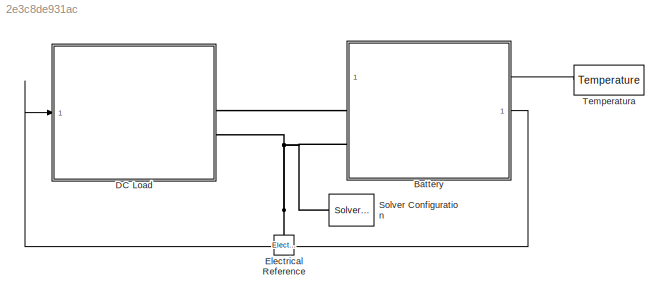
MODEL slx_2e3c8de931ac
KIND model
CONFIG PostLoadFcn = load('input_modelo_bateria.mat')
BLOCK [SubSystem] Battery
  PortSchema = {"entries":[{"content":{"sides":[{"content":{"connectorIds":["LConn1","LConn2"]},"type":"ConnectorPlacement.EquallySpacedRectSide","uuid":"a87e55b6-8336-4e26-8f41-032772011576"},{"content":{"connectorIds":["In1","Out1"],"side":"RIGHT"},"type":"ConnectorPlacement.EquallySpacedRectSide","uuid":"bc789b5a-3568-4714-b987-1664b39aeefc"},{"content":{"connectorIds":[],"side":"TOP"},"type":"ConnectorPlacem...<+258ch>
  Ports = [1, 1, 0, 0, 0, 2]
  ReferencedSubsystem = Battery
  RequestExecContextInheritance = off
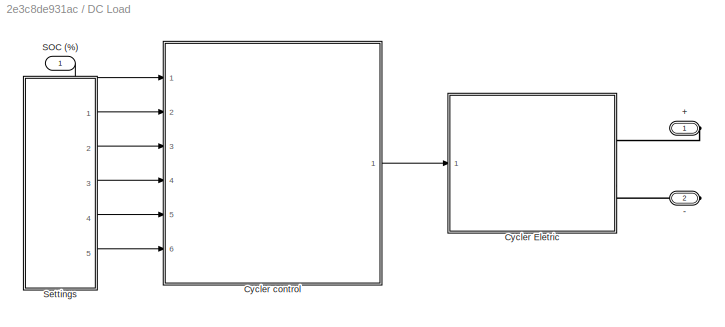
BLOCK [SubSystem] DC Load
  Ports = [1, 0, 0, 0, 0, 0, 2]
  RequestExecContextInheritance = off
BLOCK [PMIOPort] DC Load/+
  Side = Right
BLOCK [PMIOPort] DC Load/-
  Port = 2
  Side = Right
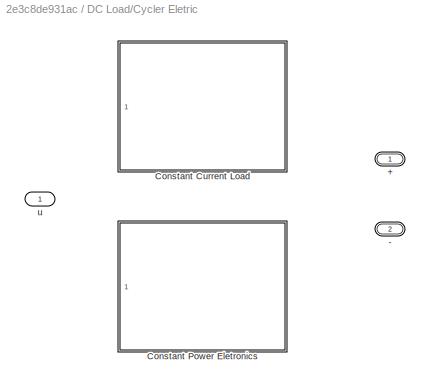
BLOCK [SubSystem] DC Load/Cycler Eletric
  Ports = [1, 0, 0, 0, 0, 0, 2]
  RequestExecContextInheritance = off
  Variant = on
  VariantControl = Choice
BLOCK [PMIOPort] DC Load/Cycler Eletric/+
  Side = Right
BLOCK [PMIOPort] DC Load/Cycler Eletric/-
  Port = 2
  Side = Right
BLOCK [SubSystem] DC Load/Cycler Eletric/Constant Current Load
  Ports = [1, 0, 0, 0, 0, 0, 2]
  ReferencedSubsystem = constant_current_load
  RequestExecContextInheritance = off
  VariantControl = CYCLING_MODE == 0;
BLOCK [SubSystem] DC Load/Cycler Eletric/Constant Power Eletronics
  Ports = [1, 0, 0, 0, 0, 0, 2]
  ReferencedSubsystem = constant_power_eletronics
  RequestExecContextInheritance = off
  VariantControl = CYCLING_MODE == 1;
BLOCK [Inport] DC Load/Cycler Eletric/u 
BLOCK [SubSystem] DC Load/Cycler control
  Ports = [6, 1]
  ReferencedSubsystem = cycling_control
  RequestExecContextInheritance = off
BLOCK [Inport] DC Load/SOC (%)
  NameLocation = top
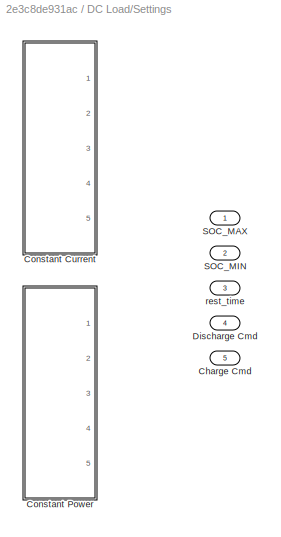
BLOCK [SubSystem] DC Load/Settings
  Ports = [0, 5]
  RequestExecContextInheritance = off
  Variant = on
  VariantControl = Choice
BLOCK [Outport] DC Load/Settings/Charge Cmd
  NameLocation = right
  Port = 5
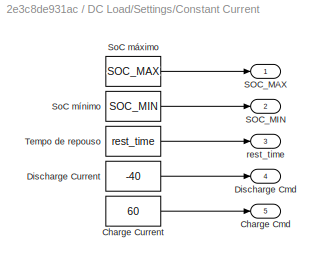
BLOCK [SubSystem] DC Load/Settings/Constant Current
  Ports = [0, 5]
  RequestExecContextInheritance = off
  VariantControl = CYCLING_MODE == 0;
BLOCK [Outport] DC Load/Settings/Constant Current/Charge Cmd
  Port = 5
BLOCK [Constant] DC Load/Settings/Constant Current/Charge Current
  NameLocation = left
  Value = 60
BLOCK [Outport] DC Load/Settings/Constant Current/Discharge Cmd
  Port = 4
BLOCK [Constant] DC Load/Settings/Constant Current/Discharge Current
  NameLocation = left
  Value = -40
BLOCK [Outport] DC Load/Settings/Constant Current/SOC_MAX
BLOCK [Outport] DC Load/Settings/Constant Current/SOC_MIN
  Port = 2
BLOCK [Constant] DC Load/Settings/Constant Current/SoC máximo
  NameLocation = left
  Value = SOC_MAX
BLOCK [Constant] DC Load/Settings/Constant Current/SoC mínimo
  NameLocation = left
  Value = SOC_MIN
BLOCK [Constant] DC Load/Settings/Constant Current/Tempo de repouso
  NameLocation = left
  Value = rest_time
BLOCK [Outport] DC Load/Settings/Constant Current/rest_time
  Port = 3
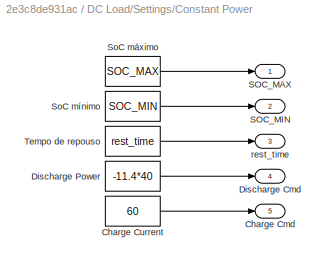
BLOCK [SubSystem] DC Load/Settings/Constant Power
  Ports = [0, 5]
  RequestExecContextInheritance = off
  VariantControl = CYCLING_MODE == 1;
BLOCK [Outport] DC Load/Settings/Constant Power/Charge Cmd
  NameLocation = right
  Port = 5
BLOCK [Constant] DC Load/Settings/Constant Power/Charge Current
  NameLocation = left
  Value = 60
BLOCK [Outport] DC Load/Settings/Constant Power/Discharge Cmd
  NameLocation = right
  Port = 4
BLOCK [Constant] DC Load/Settings/Constant Power/Discharge Power
  NameLocation = left
  Value = -11.4*40
BLOCK [Outport] DC Load/Settings/Constant Power/SOC_MAX
  NameLocation = right
BLOCK [Outport] DC Load/Settings/Constant Power/SOC_MIN
  NameLocation = right
  Port = 2
BLOCK [Constant] DC Load/Settings/Constant Power/SoC máximo
  NameLocation = left
  Value = SOC_MAX
BLOCK [Constant] DC Load/Settings/Constant Power/SoC mínimo
  NameLocation = left
  Value = SOC_MIN
BLOCK [Constant] DC Load/Settings/Constant Power/Tempo de repouso
  NameLocation = left
  Value = rest_time
BLOCK [Outport] DC Load/Settings/Constant Power/rest_time
  NameLocation = right
  Port = 3
BLOCK [Outport] DC Load/Settings/Discharge Cmd
  NameLocation = right
  Port = 4
BLOCK [Outport] DC Load/Settings/SOC_MAX
  NameLocation = right
BLOCK [Outport] DC Load/Settings/SOC_MIN
  NameLocation = right
  Port = 2
BLOCK [Outport] DC Load/Settings/rest_time
  NameLocation = right
  Port = 3
BLOCK [Reference] Electrical Reference  REF=fl_lib/Electrical/Electrical Elements/Electrical Reference
  NameLocation = right
  Ports = [0, 0, 0, 0, 0, 1]
  SourceBlock = fl_lib/Electrical/Electrical Elements/Electrical Reference
  SourceProductBaseCode = PW,SS,VE
  SourceType = Electrical Reference
BLOCK [Reference] Solver Configuration  REF=nesl_utility/Solver
Configuration
  Ports = [0, 0, 0, 0, 0, 0, 1]
  SourceBlock = nesl_utility/Solver\nConfiguration
  SourceProductBaseCode = SS,PW,VE
  SourceType = Solver\nConfiguration
BLOCK [Constant] Temperatura
  Value = Temperature
LINE Battery:1 -> DC Load:1
LINE DC Load/Cycler control:1 -> DC Load/Cycler Eletric:1
LINE DC Load/SOC (%):1 -> DC Load/Cycler control:1
LINE DC Load/Settings/Constant Current/Charge Current:1 -> DC Load/Settings/Constant Current/Charge Cmd:1
LINE DC Load/Settings/Constant Current/Discharge Current:1 -> DC Load/Settings/Constant Current/Discharge Cmd:1
LINE DC Load/Settings/Constant Current/SoC máximo:1 -> DC Load/Settings/Constant Current/SOC_MAX:1
LINE DC Load/Settings/Constant Current/SoC mínimo:1 -> DC Load/Settings/Constant Current/SOC_MIN:1
LINE DC Load/Settings/Constant Current/Tempo de repouso:1 -> DC Load/Settings/Constant Current/rest_time:1
LINE DC Load/Settings/Constant Power/Charge Current:1 -> DC Load/Settings/Constant Power/Charge Cmd:1
LINE DC Load/Settings/Constant Power/Discharge Power:1 -> DC Load/Settings/Constant Power/Discharge Cmd:1
LINE DC Load/Settings/Constant Power/SoC máximo:1 -> DC Load/Settings/Constant Power/SOC_MAX:1
LINE DC Load/Settings/Constant Power/SoC mínimo:1 -> DC Load/Settings/Constant Power/SOC_MIN:1
LINE DC Load/Settings/Constant Power/Tempo de repouso:1 -> DC Load/Settings/Constant Power/rest_time:1
LINE DC Load/Settings:1 -> DC Load/Cycler control:2
LINE DC Load/Settings:2 -> DC Load/Cycler control:3
LINE DC Load/Settings:3 -> DC Load/Cycler control:4
LINE DC Load/Settings:4 -> DC Load/Cycler control:5
LINE DC Load/Settings:5 -> DC Load/Cycler control:6
LINE Temperatura:1 -> Battery:1
PLINE Battery:LConn1 -- DC Load:RConn1
PNET net1: Battery:LConn2 -- DC Load:RConn2 -- Electrical Reference:LConn1 -- Solver Configuration:RConn1
PLINE DC Load/+:RConn1 -- DC Load/Cycler Eletric:RConn1
PLINE DC Load/-:RConn1 -- DC Load/Cycler Eletric:RConn2
note: PNET lines group multi-terminal physical nets as a canonical sorted terminal list (undirected conserving connections); 2-terminal nets keep the pairwise PLINE form
